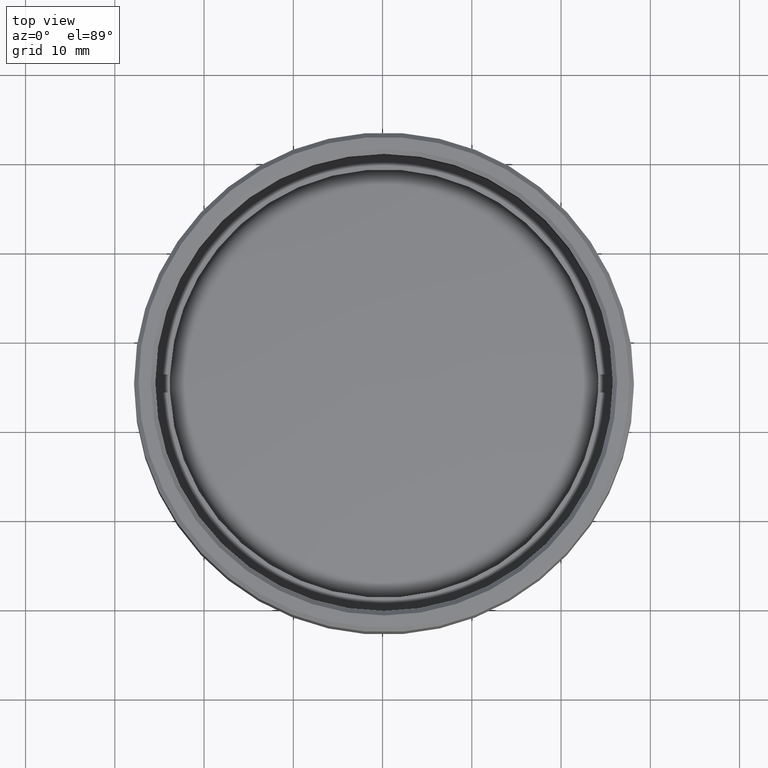
[diagram: clean part render]
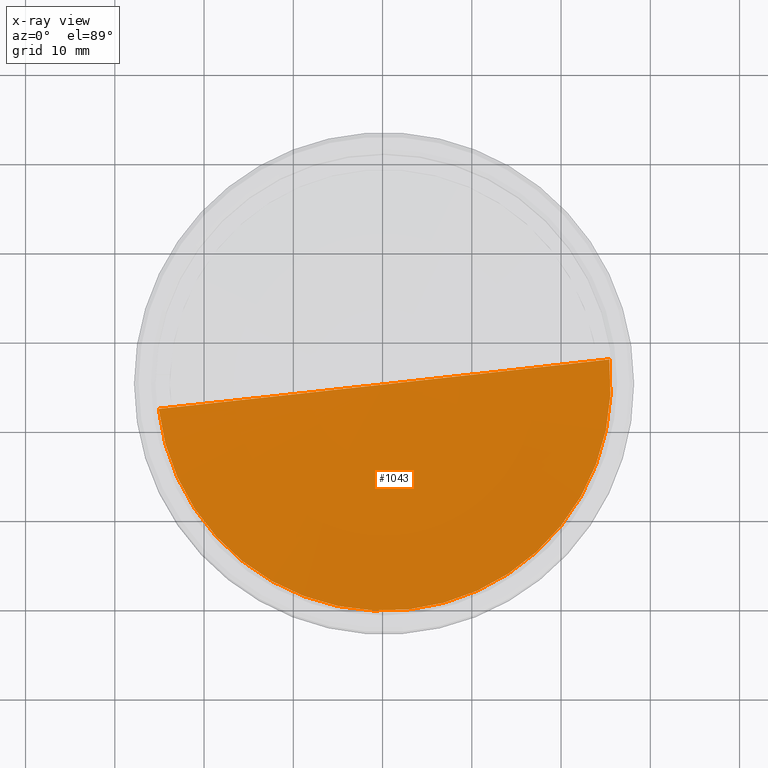
[diagram: x-ray — body ghosted, one internal face saturated and labeled with its STEP entity id]
A machine part, top view, then the same camera in x-ray: the body is ghosted and one INTERNAL B-rep face — a face not visible from any outside direction — is saturated and labeled: STEP entity #1043.
In plain terms, the highlighted spherical surface has radius 186.8 mm.
Its self-contained STEP definition (entity closure, byte-faithful):
#2 = ORIENTED_EDGE ( 'NONE', *, *, #236, .T. ) ;
#65 = CIRCLE ( 'NONE', #233, 186.7999999999999829 ) ;
#101 = DIRECTION ( 'NONE',  ( -1.000000000000000000, 0.000000000000000000, -1.485844519037950526E-16 ) ) ;
#233 = AXIS2_PLACEMENT_3D ( 'NONE', #1501, #1520, #1539 ) ;
#236 = EDGE_CURVE ( 'NONE', #1688, #497, #1171, .T. ) ;
#328 = CARTESIAN_POINT ( 'NONE',  ( 25.39999999999999858, 3.110602869834265032E-15, -3.265069637681774939 ) ) ;
#381 = ORIENTED_EDGE ( 'NONE', *, *, #1184, .F. ) ;
#458 = CARTESIAN_POINT ( 'NONE',  ( -25.39999999999999858, 0.000000000000000000, -3.265069637681774939 ) ) ;
#474 = AXIS2_PLACEMENT_3D ( 'NONE', #925, #1596, #101 ) ;
#497 = VERTEX_POINT ( 'NONE', #458 ) ;
#502 = DIRECTION ( 'NONE',  ( 1.024442997624099940E-16, 0.000000000000000000, -1.000000000000000000 ) ) ;
#504 = FACE_OUTER_BOUND ( 'NONE', #935, .T. ) ;
#915 = SPHERICAL_SURFACE ( 'NONE', #474, 186.7999999999999829 ) ;
#925 = CARTESIAN_POINT ( 'NONE',  ( 0.000000000000000000, 0.000000000000000000, 181.7999999999999829 ) ) ;
#935 = EDGE_LOOP ( 'NONE', ( #381, #2 ) ) ;
#1043 = ADVANCED_FACE ( 'NONE', ( #504 ), #915, .T. ) ;
#1059 = DIRECTION ( 'NONE',  ( -1.000000000000000000, 0.000000000000000000, -1.024442997624098707E-16 ) ) ;
#1171 = CIRCLE ( 'NONE', #1198, 25.39999999999999858 ) ;
#1184 = EDGE_CURVE ( 'NONE', #1688, #497, #65, .T. ) ;
#1198 = AXIS2_PLACEMENT_3D ( 'NONE', #1455, #502, #1059 ) ;
#1455 = CARTESIAN_POINT ( 'NONE',  ( 3.198845664624149978E-16, 0.000000000000000000, -3.265069637681770054 ) ) ;
#1501 = CARTESIAN_POINT ( 'NONE',  ( 0.000000000000000000, 0.000000000000000000, 181.7999999999999829 ) ) ;
#1520 = DIRECTION ( 'NONE',  ( -1.224646799147353947E-16, 1.000000000000000000, -1.199807826129485949E-32 ) ) ;
#1539 = DIRECTION ( 'NONE',  ( -1.000000000000000000, -1.224646799147353947E-16, 0.000000000000000000 ) ) ;
#1596 = DIRECTION ( 'NONE',  ( -1.485844519037950526E-16, 0.000000000000000000, 1.000000000000000000 ) ) ;
#1688 = VERTEX_POINT ( 'NONE', #328 ) ;